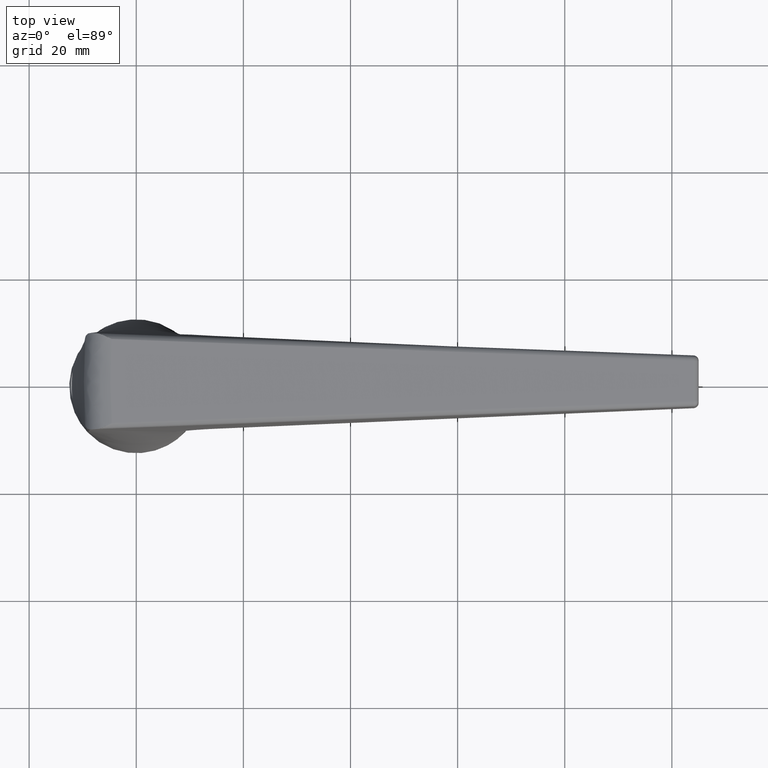
[diagram: clean part render]
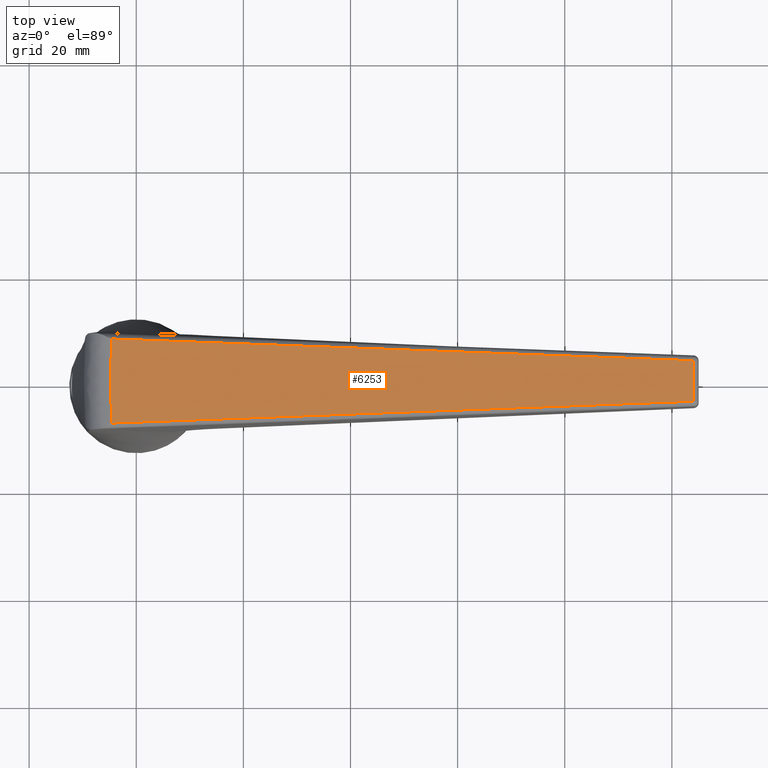
[diagram: same view with one face highlighted and labeled with its STEP entity id]
A machine part, top view. The second image highlights one B-rep face of the part: STEP entity #6253.
In plain terms, the highlighted planar face has unit normal (-0.004, -0, 1).
Its self-contained STEP definition (entity closure, byte-faithful):
#328 = EDGE_CURVE ( 'NONE', #7478, #5243, #3326, .T. ) ;
#410 = B_SPLINE_CURVE_WITH_KNOTS ( 'NONE', 3,
 ( #12047, #5520, #545, #7551, #1529, #8462, #2550, #9383 ),
 .UNSPECIFIED., .F., .F.,
 ( 4, 2, 2, 4 ),
 ( 0.0000000000000000000, 0.007854573419151031700, 0.01178186012872654800, 0.01570914683830206300 ),
 .UNSPECIFIED. ) ;
#487 = ORIENTED_EDGE ( 'NONE', *, *, #328, .T. ) ;
#545 = CARTESIAN_POINT ( 'NONE',  ( -4.819171679095657800, 2.617860838606896700, 64.56467847423309100 ) ) ;
#563 = EDGE_CURVE ( 'NONE', #7640, #7478, #5438, .T. ) ;
#701 = VERTEX_POINT ( 'NONE', #4471 ) ;
#1225 = FACE_OUTER_BOUND ( 'NONE', #3749, .T. ) ;
#1529 = CARTESIAN_POINT ( 'NONE',  ( -4.797350214575576600, -2.618285655214172900, 64.56476481240403600 ) ) ;
#1615 = CARTESIAN_POINT ( 'NONE',  ( 103.9960360456202600, -1.390757379366554900E-008, 64.99602030141944900 ) ) ;
#1627 = DIRECTION ( 'NONE',  ( -0.0000000000000000000, 0.9999999999999995600, 3.090030005327139300E-008 ) ) ;
#1705 = EDGE_CURVE ( 'NONE', #701, #7640, #10880, .T. ) ;
#2267 = CARTESIAN_POINT ( 'NONE',  ( -9.545941546018381600, -5.204170427930421300E-015, 64.54594154601841200 ) ) ;
#2550 = CARTESIAN_POINT ( 'NONE',  ( -4.654938060751090000, -6.542774030558881300, 64.56532921085221200 ) ) ;
#3326 = B_SPLINE_CURVE_WITH_KNOTS ( 'NONE', 3,
 ( #4799, #5861, #5208, #4891, #4879, #4876, #4868, #4817, #4730, #4739 ),
 .UNSPECIFIED., .F., .F.,
 ( 4, 3, 3, 4 ),
 ( 0.001004674303419063400, 0.003285573809167653000, 0.05734997145442793900, 0.1096594350688305700 ),
 .UNSPECIFIED. ) ;
#3328 = PLANE ( 'NONE',  #3424 ) ;
#3424 = AXIS2_PLACEMENT_3D ( 'NONE', #2267, #5331, #11884 ) ;
#3749 = EDGE_LOOP ( 'NONE', ( #10232, #12109, #487, #5793 ) ) ;
#4463 = EDGE_CURVE ( 'NONE', #5243, #701, #410, .T. ) ;
#4471 = CARTESIAN_POINT ( 'NONE',  ( -4.581872161489909200, -7.849940977426080700, 64.56561880262721300 ) ) ;
#4730 = CARTESIAN_POINT ( 'NONE',  ( 12.84227860207313700, 7.197763826998896200, 64.63468834897929600 ) ) ;
#4739 = CARTESIAN_POINT ( 'NONE',  ( -4.581871413991477100, 7.849940927420733200, 64.56561929072137200 ) ) ;
#4799 = CARTESIAN_POINT ( 'NONE',  ( 103.9960360456202700, 3.786715209398711800, 64.99602041843007800 ) ) ;
#4817 = CARTESIAN_POINT ( 'NONE',  ( 30.26643091852601600, 6.545648183949361400, 64.70375741635787400 ) ) ;
#4868 = CARTESIAN_POINT ( 'NONE',  ( 47.69058550912205900, 5.893593314214816900, 64.77282649275298400 ) ) ;
#4876 = CARTESIAN_POINT ( 'NONE',  ( 65.69930433987505600, 5.219662607837229900, 64.84421277265724400 ) ) ;
#4879 = CARTESIAN_POINT ( 'NONE',  ( 83.70802560012074900, 4.545796820130688900, 64.91559906219397600 ) ) ;
#4891 = CARTESIAN_POINT ( 'NONE',  ( 101.7167492558677100, 3.871995061210233800, 64.98698536122842000 ) ) ;
#5040 = CARTESIAN_POINT ( 'NONE',  ( 103.9960360456203300, -3.786715271010633100, 64.99602018440882000 ) ) ;
#5111 = VECTOR ( 'NONE', #1627, 1000.000000000000100 ) ;
#5126 = CARTESIAN_POINT ( 'NONE',  ( 103.9960360456203300, -3.786715271010633100, 64.99602018440882000 ) ) ;
#5158 = CARTESIAN_POINT ( 'NONE',  ( 85.22754978050822700, -4.488938134831976800, 64.92162215487053300 ) ) ;
#5176 = CARTESIAN_POINT ( 'NONE',  ( 66.45906611560249600, -5.191230499657110400, 64.84722413563726200 ) ) ;
#5208 = CARTESIAN_POINT ( 'NONE',  ( 102.4765115148562400, 3.843568330018515900, 64.98999704694541900 ) ) ;
#5218 = CARTESIAN_POINT ( 'NONE',  ( 47.69058508948585000, -5.893593375643562600, 64.77282612686194300 ) ) ;
#5243 = VERTEX_POINT ( 'NONE', #9254 ) ;
#5245 = CARTESIAN_POINT ( 'NONE',  ( 30.26643038965718400, -6.545648243034003500, 64.70375700973646400 ) ) ;
#5289 = CARTESIAN_POINT ( 'NONE',  ( -4.581872161489909200, -7.849940977426080700, 64.56561880262721300 ) ) ;
#5331 = DIRECTION ( 'NONE',  ( -0.003963954379735347800, -3.090005728512507500E-008, 0.9999921435019749600 ) ) ;
#5334 = CARTESIAN_POINT ( 'NONE',  ( 12.84227796391801500, -7.197763882305169500, 64.63468790162357900 ) ) ;
#5438 = LINE ( 'NONE', #1615, #5111 ) ;
#5520 = CARTESIAN_POINT ( 'NONE',  ( -4.728005400572832300, 5.235572423127092800, 64.56503993692938100 ) ) ;
#5793 = ORIENTED_EDGE ( 'NONE', *, *, #4463, .T. ) ;
#5861 = CARTESIAN_POINT ( 'NONE',  ( 103.2362737781080100, 3.815141712771852300, 64.99300873267934300 ) ) ;
#6253 = ADVANCED_FACE ( 'NONE', ( #1225 ), #3328, .T. ) ;
#7478 = VERTEX_POINT ( 'NONE', #7794 ) ;
#7551 = CARTESIAN_POINT ( 'NONE',  ( -4.819170325966330100, -1.309000385707419300, 64.56467835825571900 ) ) ;
#7640 = VERTEX_POINT ( 'NONE', #5040 ) ;
#7794 = CARTESIAN_POINT ( 'NONE',  ( 103.9960360456202700, 3.786715209398711800, 64.99602041843007800 ) ) ;
#8462 = CARTESIAN_POINT ( 'NONE',  ( -4.715192057159702800, -5.235108604382621600, 64.56509040529000700 ) ) ;
#9254 = CARTESIAN_POINT ( 'NONE',  ( -4.581871413991477100, 7.849940927420733200, 64.56561929072137200 ) ) ;
#9383 = CARTESIAN_POINT ( 'NONE',  ( -4.581872161489909200, -7.849940977426080700, 64.56561880262721300 ) ) ;
#10232 = ORIENTED_EDGE ( 'NONE', *, *, #1705, .T. ) ;
#10880 = B_SPLINE_CURVE_WITH_KNOTS ( 'NONE', 3,
 ( #5289, #5334, #5245, #5218, #5176, #5158, #5126 ),
 .UNSPECIFIED., .F., .F.,
 ( 4, 3, 4 ),
 ( 0.004967584833327164800, 0.05727704877538303300, 0.1136223463462975000 ),
 .UNSPECIFIED. ) ;
#11884 = DIRECTION ( 'NONE',  ( 0.9999921435019754100, 0.0000000000000000000, 0.003963954379735349500 ) ) ;
#12047 = CARTESIAN_POINT ( 'NONE',  ( -4.581871413991477100, 7.849940927420733200, 64.56561929072137200 ) ) ;
#12109 = ORIENTED_EDGE ( 'NONE', *, *, #563, .T. ) ;